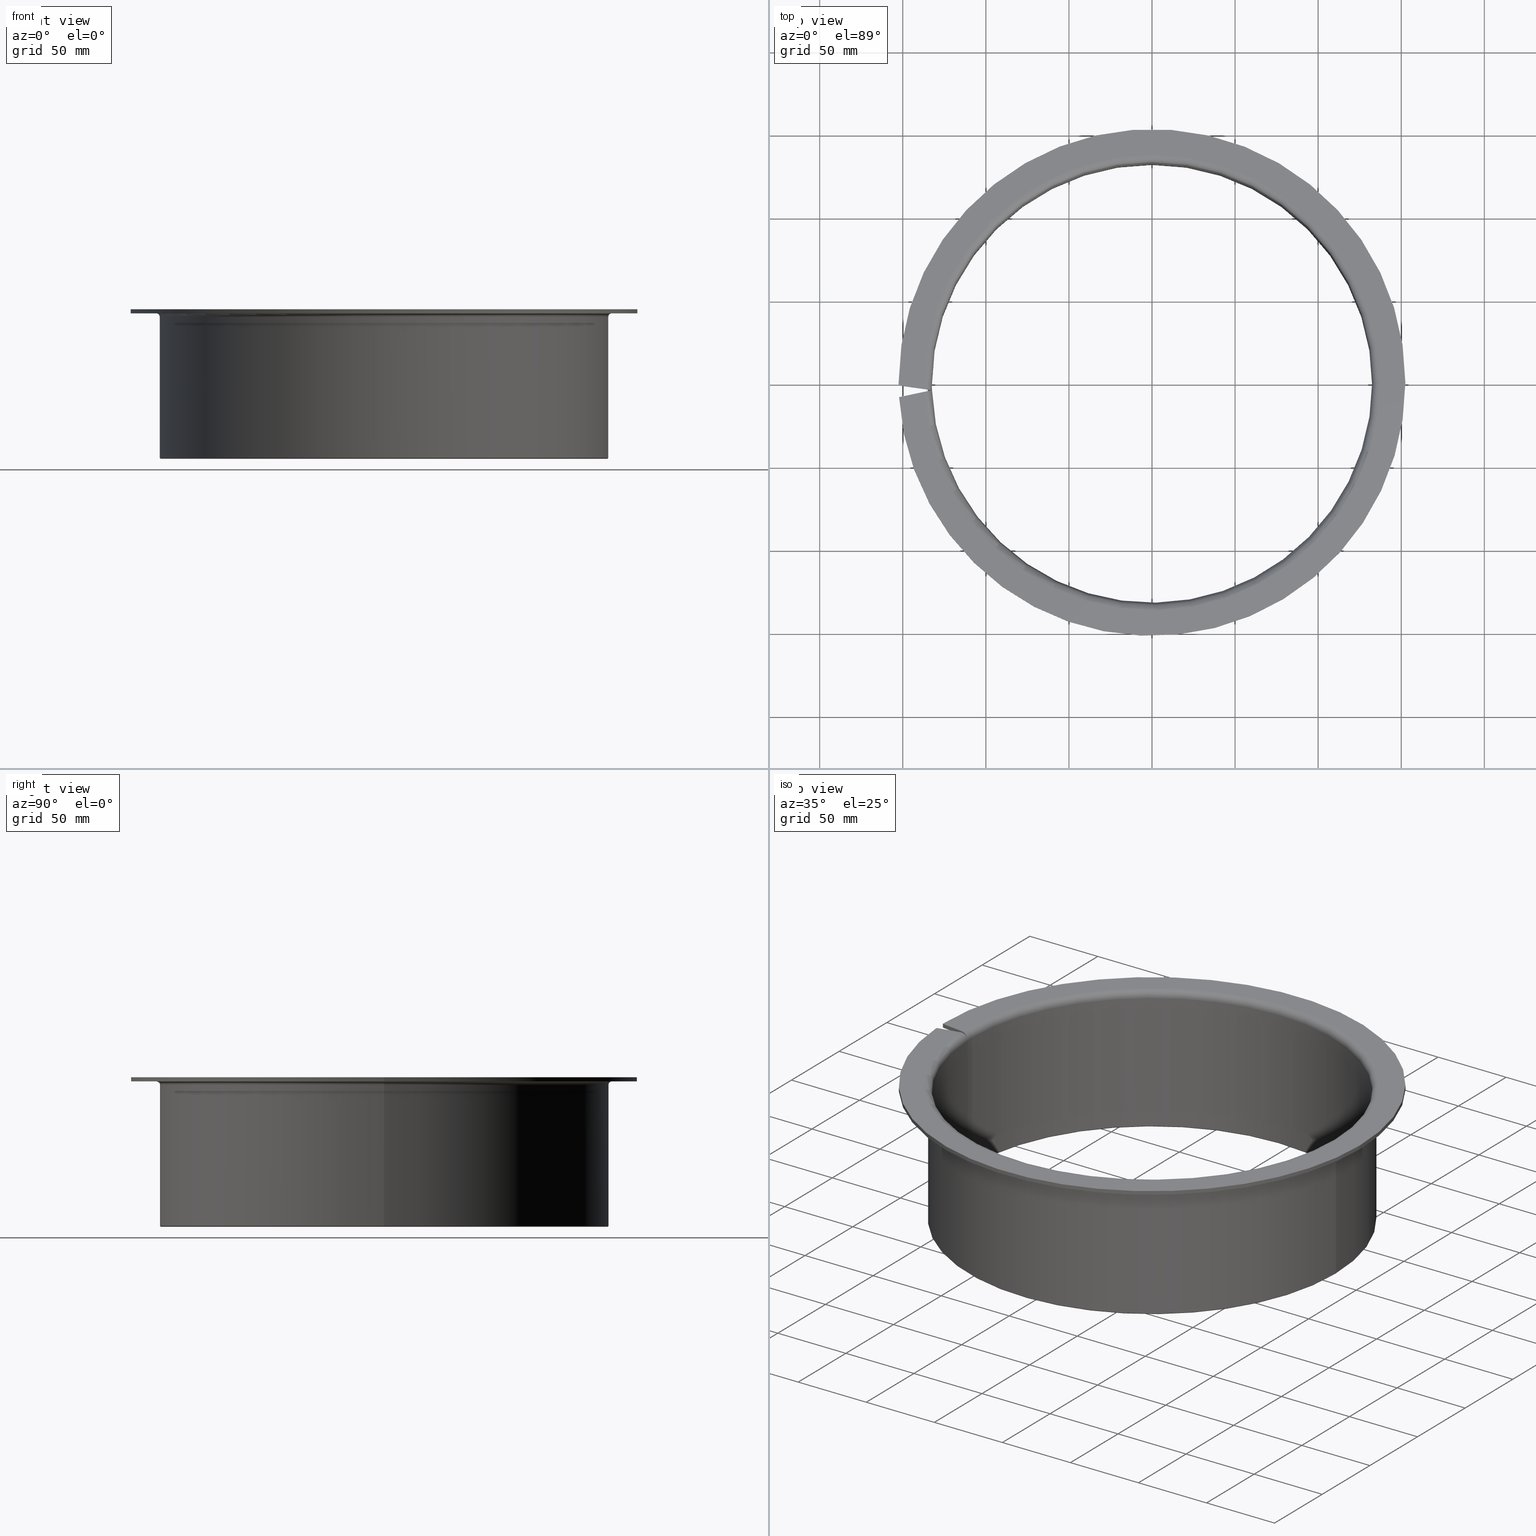
[diagram: canonical four-view strip — front | top / right | iso, engineering-drawing reading convention]
A machine part, canonical four-view strip (front | top / right | iso — engineering-drawing reading convention). The complete STEP part file that produces these views, byte-faithful:
ISO-10303-21;
HEADER;
FILE_DESCRIPTION(('STEP AP203'),'1');
FILE_NAME('490-ABB092-26590.stp','2016-09-23T15:52:54',(' '),(' '),'Spatial InterOp 3D',' ',' ');
FILE_SCHEMA(('CONFIG_CONTROL_DESIGN'));
ENDSEC;
DATA;
#1=DESIGN_CONTEXT('',#27,'design');
#2=APPLICATION_PROTOCOL_DEFINITION('INTERNATIONAL STANDARD','config_control_design',1994,#27);
#3=PRODUCT_CATEGORY_RELATIONSHIP('NONE','NONE',#28,#29);
#4=DATE_AND_TIME(#30,#31);
#5=DATE_TIME_ROLE('creation_date');
#6=DATE_TIME_ROLE('classification_date');
#7=PERSON_AND_ORGANIZATION_ROLE('creator');
#8=PERSON_AND_ORGANIZATION_ROLE('design_supplier');
#9=PERSON_AND_ORGANIZATION_ROLE('classification_officer');
#10=PERSON_AND_ORGANIZATION_ROLE('design_owner');
#11=APPROVAL_PERSON_ORGANIZATION(#32,#33,#34);
#12=APPROVAL_DATE_TIME(#4,#33);
#13=CC_DESIGN_APPROVAL(#33,(#35,#36,#37));
#14=CC_DESIGN_DATE_AND_TIME_ASSIGNMENT(#4,#5,(#37));
#15=CC_DESIGN_DATE_AND_TIME_ASSIGNMENT(#4,#6,(#35));
#16=CC_DESIGN_PERSON_AND_ORGANIZATION_ASSIGNMENT(#32,#10,(#38));
#17=CC_DESIGN_PERSON_AND_ORGANIZATION_ASSIGNMENT(#32,#7,(#37));
#18=CC_DESIGN_PERSON_AND_ORGANIZATION_ASSIGNMENT(#32,#7,(#36));
#19=CC_DESIGN_PERSON_AND_ORGANIZATION_ASSIGNMENT(#32,#8,(#36));
#20=CC_DESIGN_SECURITY_CLASSIFICATION(#35,(#36));
#21=CC_DESIGN_PERSON_AND_ORGANIZATION_ASSIGNMENT(#32,#9,(#35));
#22=SHAPE_DEFINITION_REPRESENTATION(#39,#40);
#23= (GEOMETRIC_REPRESENTATION_CONTEXT(3)GLOBAL_UNCERTAINTY_ASSIGNED_CONTEXT((#43))GLOBAL_UNIT_ASSIGNED_CONTEXT((#45,#46,#47))REPRESENTATION_CONTEXT('NONE','WORKSPACE'));
#27=APPLICATION_CONTEXT('CONFIGURATION CONTROLLED 3D DESIGNS OF MECHANICAL PARTS AND ASSEMBLIES');
#28=PRODUCT_CATEGORY('part','NONE');
#29=PRODUCT_RELATED_PRODUCT_CATEGORY('detail',' ',(#38));
#30=CALENDAR_DATE(2016,23,8);
#31=LOCAL_TIME(17,52,54.0,#49);
#32=PERSON_AND_ORGANIZATION(#50,#51);
#33=APPROVAL(#52,'SOLID MODEL');
#34=APPROVAL_ROLE('APPROVED');
#35=SECURITY_CLASSIFICATION('','',#53);
#36=PRODUCT_DEFINITION_FORMATION_WITH_SPECIFIED_SOURCE(' ','NONE',#38,.NOT_KNOWN.);
#37=PRODUCT_DEFINITION('NONE','NONE',#36,#1);
#38=PRODUCT('1','1','PART-1-DESC',(#54));
#39=PRODUCT_DEFINITION_SHAPE('NONE','NONE',#37);
#40=ADVANCED_BREP_SHAPE_REPRESENTATION('1',(#55,#56),#23);
#43=UNCERTAINTY_MEASURE_WITH_UNIT(LENGTH_MEASURE(1.0E-006),#45,'','');
#45= (CONVERSION_BASED_UNIT('MILLIMETRE',#59)LENGTH_UNIT()NAMED_UNIT(#62));
#46= (NAMED_UNIT(#64)PLANE_ANGLE_UNIT()SI_UNIT($,.RADIAN.));
#47= (NAMED_UNIT(#64)SOLID_ANGLE_UNIT()SI_UNIT($,.STERADIAN.));
#49=COORDINATED_UNIVERSAL_TIME_OFFSET(1,0,.AHEAD.);
#50=PERSON('','UNSPECIFIED',$,$,$,$);
#51=ORGANIZATION('UNSPECIFIED','UNSPECIFIED','UNSPECIFIED');
#52=APPROVAL_STATUS('approved');
#53=SECURITY_CLASSIFICATION_LEVEL('unclassified');
#54=MECHANICAL_CONTEXT('',#27,'mechanical');
#55=MANIFOLD_SOLID_BREP('1',#70);
#56=AXIS2_PLACEMENT_3D('',#71,#72,#73);
#59=LENGTH_MEASURE_WITH_UNIT(LENGTH_MEASURE(1.0),#74);
#62=DIMENSIONAL_EXPONENTS(1.0,0.0,0.0,0.0,0.0,0.0,0.0);
#64=DIMENSIONAL_EXPONENTS(0.0,0.0,0.0,0.0,0.0,0.0,0.0);
#70=CLOSED_SHELL('',(#75,#76,#77,#78,#79,#80,#81,#82,#83,#84,#85,#86,#87,#88,#89,#90,#91,#92,#93,#94,#95,#96,#97,#98,#99,#100));
#71=CARTESIAN_POINT('',(0.0,0.0,0.0));
#72=DIRECTION('',(0.0,0.0,1.0));
#73=DIRECTION('',(1.0,0.0,0.0));
#74= (NAMED_UNIT(#62)LENGTH_UNIT()SI_UNIT(.MILLI.,.METRE.));
#75=ADVANCED_FACE('',(#102),#103,.F.);
#76=ADVANCED_FACE('',(#104),#105,.F.);
#77=ADVANCED_FACE('',(#106),#107,.T.);
#78=ADVANCED_FACE('',(#108),#109,.T.);
#79=ADVANCED_FACE('',(#110),#111,.T.);
#80=ADVANCED_FACE('',(#112),#113,.T.);
#81=ADVANCED_FACE('',(#114),#115,.F.);
#82=ADVANCED_FACE('',(#116),#117,.F.);
#83=ADVANCED_FACE('',(#118),#119,.T.);
#84=ADVANCED_FACE('',(#120),#121,.T.);
#85=ADVANCED_FACE('',(#122),#123,.T.);
#86=ADVANCED_FACE('',(#124),#125,.T.);
#87=ADVANCED_FACE('',(#126),#127,.F.);
#88=ADVANCED_FACE('',(#128),#129,.F.);
#89=ADVANCED_FACE('',(#130),#131,.T.);
#90=ADVANCED_FACE('',(#132),#133,.F.);
#91=ADVANCED_FACE('',(#134),#135,.T.);
#92=ADVANCED_FACE('',(#136),#137,.T.);
#93=ADVANCED_FACE('',(#138),#139,.T.);
#94=ADVANCED_FACE('',(#140),#141,.T.);
#95=ADVANCED_FACE('',(#142),#143,.F.);
#96=ADVANCED_FACE('',(#144),#145,.T.);
#97=ADVANCED_FACE('',(#146),#147,.T.);
#98=ADVANCED_FACE('',(#148),#149,.T.);
#99=ADVANCED_FACE('',(#150),#151,.F.);
#100=ADVANCED_FACE('',(#152),#153,.F.);
#102=FACE_OUTER_BOUND('',#154,.T.);
#103=CONICAL_SURFACE('',#155,132.75,0.785398163397455);
#104=FACE_OUTER_BOUND('',#156,.T.);
#105=CONICAL_SURFACE('',#157,132.75,0.785398163397455);
#106=FACE_OUTER_BOUND('',#158,.T.);
#107=CONICAL_SURFACE('',#159,134.75,0.785398163397438);
#108=FACE_OUTER_BOUND('',#160,.T.);
#109=CONICAL_SURFACE('',#161,134.75,0.785398163397438);
#110=FACE_OUTER_BOUND('',#162,.T.);
#111=CYLINDRICAL_SURFACE('',#163,135.0);
#112=FACE_OUTER_BOUND('',#164,.T.);
#113=CYLINDRICAL_SURFACE('',#165,135.0);
#114=FACE_OUTER_BOUND('',#166,.T.);
#115=TOROIDAL_SURFACE('',#167,137.0,2.0);
#116=FACE_OUTER_BOUND('',#168,.T.);
#117=TOROIDAL_SURFACE('',#169,137.0,2.0);
#118=FACE_OUTER_BOUND('',#170,.T.);
#119=CYLINDRICAL_SURFACE('',#171,152.5);
#120=FACE_OUTER_BOUND('',#172,.T.);
#121=CYLINDRICAL_SURFACE('',#173,152.5);
#122=FACE_OUTER_BOUND('',#174,.T.);
#123=TOROIDAL_SURFACE('',#175,137.0,4.5);
#124=FACE_OUTER_BOUND('',#176,.T.);
#125=TOROIDAL_SURFACE('',#177,137.0,4.5);
#126=FACE_OUTER_BOUND('',#178,.T.);
#127=CYLINDRICAL_SURFACE('',#179,132.5);
#128=FACE_OUTER_BOUND('',#180,.T.);
#129=CYLINDRICAL_SURFACE('',#181,132.5);
#130=FACE_OUTER_BOUND('',#182,.T.);
#131=PLANE('',#183);
#132=FACE_OUTER_BOUND('',#184,.T.);
#133=CYLINDRICAL_SURFACE('',#185,132.5);
#134=FACE_OUTER_BOUND('',#186,.T.);
#135=TOROIDAL_SURFACE('',#187,137.0,4.5);
#136=FACE_OUTER_BOUND('',#188,.T.);
#137=PLANE('',#189);
#138=FACE_OUTER_BOUND('',#190,.T.);
#139=CYLINDRICAL_SURFACE('',#191,152.5);
#140=FACE_OUTER_BOUND('',#192,.T.);
#141=PLANE('',#193);
#142=FACE_OUTER_BOUND('',#194,.T.);
#143=TOROIDAL_SURFACE('',#195,137.0,2.0);
#144=FACE_OUTER_BOUND('',#196,.T.);
#145=CYLINDRICAL_SURFACE('',#197,135.0);
#146=FACE_OUTER_BOUND('',#198,.T.);
#147=CONICAL_SURFACE('',#199,134.75,0.785398163397438);
#148=FACE_OUTER_BOUND('',#200,.T.);
#149=PLANE('',#201);
#150=FACE_OUTER_BOUND('',#202,.T.);
#151=CONICAL_SURFACE('',#203,132.75,0.785398163397455);
#152=FACE_OUTER_BOUND('',#204,.T.);
#153=PLANE('',#205);
#154=EDGE_LOOP('',(#206,#207,#208,#209));
#155=AXIS2_PLACEMENT_3D('',#210,#211,#212);
#156=EDGE_LOOP('',(#213,#214,#215,#216));
#157=AXIS2_PLACEMENT_3D('',#217,#218,#219);
#158=EDGE_LOOP('',(#220,#221,#222,#223));
#159=AXIS2_PLACEMENT_3D('',#224,#225,#226);
#160=EDGE_LOOP('',(#227,#228,#229,#230));
#161=AXIS2_PLACEMENT_3D('',#231,#232,#233);
#162=EDGE_LOOP('',(#234,#235,#236,#237));
#163=AXIS2_PLACEMENT_3D('',#238,#239,#240);
#164=EDGE_LOOP('',(#241,#242,#243,#244));
#165=AXIS2_PLACEMENT_3D('',#245,#246,#247);
#166=EDGE_LOOP('',(#248,#249,#250,#251));
#167=AXIS2_PLACEMENT_3D('',#252,#253,#254);
#168=EDGE_LOOP('',(#255,#256,#257,#258));
#169=AXIS2_PLACEMENT_3D('',#259,#260,#261);
#170=EDGE_LOOP('',(#262,#263,#264,#265));
#171=AXIS2_PLACEMENT_3D('',#266,#267,#268);
#172=EDGE_LOOP('',(#269,#270,#271,#272));
#173=AXIS2_PLACEMENT_3D('',#273,#274,#275);
#174=EDGE_LOOP('',(#276,#277,#278,#279));
#175=AXIS2_PLACEMENT_3D('',#280,#281,#282);
#176=EDGE_LOOP('',(#283,#284,#285,#286));
#177=AXIS2_PLACEMENT_3D('',#287,#288,#289);
#178=EDGE_LOOP('',(#290,#291,#292,#293));
#179=AXIS2_PLACEMENT_3D('',#294,#295,#296);
#180=EDGE_LOOP('',(#297,#298,#299,#300));
#181=AXIS2_PLACEMENT_3D('',#301,#302,#303);
#182=EDGE_LOOP('',(#304,#305,#306,#307,#308,#309,#310,#311,#312,#313));
#183=AXIS2_PLACEMENT_3D('',#314,#315,#316);
#184=EDGE_LOOP('',(#317,#318,#319,#320));
#185=AXIS2_PLACEMENT_3D('',#321,#322,#323);
#186=EDGE_LOOP('',(#324,#325,#326,#327));
#187=AXIS2_PLACEMENT_3D('',#328,#329,#330);
#188=EDGE_LOOP('',(#331,#332,#333,#334,#335,#336,#337,#338));
#189=AXIS2_PLACEMENT_3D('',#339,#340,#341);
#190=EDGE_LOOP('',(#342,#343,#344,#345));
#191=AXIS2_PLACEMENT_3D('',#346,#347,#348);
#192=EDGE_LOOP('',(#349,#350,#351,#352,#353,#354,#355,#356));
#193=AXIS2_PLACEMENT_3D('',#357,#358,#359);
#194=EDGE_LOOP('',(#360,#361,#362,#363));
#195=AXIS2_PLACEMENT_3D('',#364,#365,#366);
#196=EDGE_LOOP('',(#367,#368,#369,#370));
#197=AXIS2_PLACEMENT_3D('',#371,#372,#373);
#198=EDGE_LOOP('',(#374,#375,#376,#377));
#199=AXIS2_PLACEMENT_3D('',#378,#379,#380);
#200=EDGE_LOOP('',(#381,#382,#383,#384,#385,#386,#387,#388));
#201=AXIS2_PLACEMENT_3D('',#389,#390,#391);
#202=EDGE_LOOP('',(#392,#393,#394,#395));
#203=AXIS2_PLACEMENT_3D('',#396,#397,#398);
#204=EDGE_LOOP('',(#399,#400,#401,#402,#403,#404,#405,#406,#407,#408));
#205=AXIS2_PLACEMENT_3D('',#409,#410,#411);
#206=ORIENTED_EDGE('',*,*,#412,.T.);
#207=ORIENTED_EDGE('',*,*,#413,.F.);
#208=ORIENTED_EDGE('',*,*,#414,.T.);
#209=ORIENTED_EDGE('',*,*,#415,.T.);
#210=CARTESIAN_POINT('',(1.38670259942823E-030,7.30296441936522E-016,0.250000000000002));
#211=DIRECTION('',(1.16269284789061E-031,6.12323399573677E-017,-1.0));
#212=DIRECTION('',(-1.0,1.88237377125682E-015,-1.00713410063058E-033));
#213=ORIENTED_EDGE('',*,*,#416,.F.);
#214=ORIENTED_EDGE('',*,*,#417,.F.);
#215=ORIENTED_EDGE('',*,*,#412,.F.);
#216=ORIENTED_EDGE('',*,*,#418,.T.);
#217=CARTESIAN_POINT('',(1.38670259942823E-030,7.30296441936522E-016,0.250000000000002));
#218=DIRECTION('',(1.16269284789061E-031,6.12323399573677E-017,-1.0));
#219=DIRECTION('',(-1.0,1.88237377125682E-015,-1.00713410063058E-033));
#220=ORIENTED_EDGE('',*,*,#419,.F.);
#221=ORIENTED_EDGE('',*,*,#420,.F.);
#222=ORIENTED_EDGE('',*,*,#421,.T.);
#223=ORIENTED_EDGE('',*,*,#422,.T.);
#224=CARTESIAN_POINT('',(1.38670259942823E-030,7.30296441936522E-016,0.250000000000002));
#225=DIRECTION('',(-1.16269284789061E-031,-6.12323399573677E-017,1.0));
#226=DIRECTION('',(-1.0,1.88237377125682E-015,-1.00713410063055E-033));
#227=ORIENTED_EDGE('',*,*,#423,.F.);
#228=ORIENTED_EDGE('',*,*,#424,.T.);
#229=ORIENTED_EDGE('',*,*,#425,.T.);
#230=ORIENTED_EDGE('',*,*,#426,.F.);
#231=CARTESIAN_POINT('',(1.38670259942823E-030,7.30296441936522E-016,0.250000000000002));
#232=DIRECTION('',(-1.16269284789061E-031,-6.12323399573677E-017,1.0));
#233=DIRECTION('',(-1.0,1.88237377125682E-015,-1.00713410063055E-033));
#234=ORIENTED_EDGE('',*,*,#427,.F.);
#235=ORIENTED_EDGE('',*,*,#428,.F.);
#236=ORIENTED_EDGE('',*,*,#429,.T.);
#237=ORIENTED_EDGE('',*,*,#420,.T.);
#238=CARTESIAN_POINT('',(-2.8295281413662E-030,-1.49014960731379E-015,43.0));
#239=DIRECTION('',(-1.16269284789061E-031,-6.12323399573677E-017,1.0));
#240=DIRECTION('',(-1.0,1.88237377125682E-015,-1.00713410063058E-033));
#241=ORIENTED_EDGE('',*,*,#430,.F.);
#242=ORIENTED_EDGE('',*,*,#426,.T.);
#243=ORIENTED_EDGE('',*,*,#431,.T.);
#244=ORIENTED_EDGE('',*,*,#432,.F.);
#245=CARTESIAN_POINT('',(-2.8295281413662E-030,-1.49014960731379E-015,43.0));
#246=DIRECTION('',(-1.16269284789061E-031,-6.12323399573677E-017,1.0));
#247=DIRECTION('',(-1.0,1.88237377125682E-015,-1.00713410063058E-033));
#248=ORIENTED_EDGE('',*,*,#433,.T.);
#249=ORIENTED_EDGE('',*,*,#432,.T.);
#250=ORIENTED_EDGE('',*,*,#434,.T.);
#251=ORIENTED_EDGE('',*,*,#435,.F.);
#252=CARTESIAN_POINT('',(2.22044604925031E-015,-3.71059565656411E-015,85.5));
#253=DIRECTION('',(-1.16269284789061E-031,-6.12323399573677E-017,1.0));
#254=DIRECTION('',(-1.0,1.89882151931499E-015,0.0));
#255=ORIENTED_EDGE('',*,*,#436,.F.);
#256=ORIENTED_EDGE('',*,*,#437,.T.);
#257=ORIENTED_EDGE('',*,*,#433,.F.);
#258=ORIENTED_EDGE('',*,*,#438,.F.);
#259=CARTESIAN_POINT('',(2.22044604925031E-015,-3.71059565656411E-015,85.5));
#260=DIRECTION('',(-1.16269284789061E-031,-6.12323399573677E-017,1.0));
#261=DIRECTION('',(-1.0,1.89882151931499E-015,0.0));
#262=ORIENTED_EDGE('',*,*,#439,.F.);
#263=ORIENTED_EDGE('',*,*,#440,.F.);
#264=ORIENTED_EDGE('',*,*,#441,.T.);
#265=ORIENTED_EDGE('',*,*,#442,.T.);
#266=CARTESIAN_POINT('',(-7.04575888216064E-030,-3.7105956565641E-015,88.75));
#267=DIRECTION('',(-1.16269284789061E-031,-6.12323399573676E-017,1.0));
#268=DIRECTION('',(-1.0,1.88237377125682E-015,-1.00713410063058E-033));
#269=ORIENTED_EDGE('',*,*,#443,.F.);
#270=ORIENTED_EDGE('',*,*,#444,.T.);
#271=ORIENTED_EDGE('',*,*,#445,.T.);
#272=ORIENTED_EDGE('',*,*,#446,.F.);
#273=CARTESIAN_POINT('',(-7.04575888216064E-030,-3.7105956565641E-015,88.75));
#274=DIRECTION('',(-1.16269284789061E-031,-6.12323399573676E-017,1.0));
#275=DIRECTION('',(-1.0,1.88237377125682E-015,-1.00713410063058E-033));
#276=ORIENTED_EDGE('',*,*,#447,.F.);
#277=ORIENTED_EDGE('',*,*,#448,.F.);
#278=ORIENTED_EDGE('',*,*,#449,.T.);
#279=ORIENTED_EDGE('',*,*,#450,.T.);
#280=CARTESIAN_POINT('',(2.22044604925031E-015,-3.71059565656411E-015,85.5));
#281=DIRECTION('',(-1.16269284789061E-031,-6.12323399573677E-017,1.0));
#282=DIRECTION('',(-1.0,1.89882151931499E-015,0.0));
#283=ORIENTED_EDGE('',*,*,#451,.F.);
#284=ORIENTED_EDGE('',*,*,#452,.T.);
#285=ORIENTED_EDGE('',*,*,#453,.T.);
#286=ORIENTED_EDGE('',*,*,#454,.F.);
#287=CARTESIAN_POINT('',(2.22044604925031E-015,-3.71059565656411E-015,85.5));
#288=DIRECTION('',(-1.16269284789061E-031,-6.12323399573677E-017,1.0));
#289=DIRECTION('',(-1.0,1.89882151931499E-015,0.0));
#290=ORIENTED_EDGE('',*,*,#455,.T.);
#291=ORIENTED_EDGE('',*,*,#415,.F.);
#292=ORIENTED_EDGE('',*,*,#456,.T.);
#293=ORIENTED_EDGE('',*,*,#448,.T.);
#294=CARTESIAN_POINT('',(-2.8295281413662E-030,-1.49014960731379E-015,43.0));
#295=DIRECTION('',(-1.16269284789061E-031,-6.12323399573677E-017,1.0));
#296=DIRECTION('',(-1.0,1.88237377125682E-015,-1.00713410063059E-033));
#297=ORIENTED_EDGE('',*,*,#457,.F.);
#298=ORIENTED_EDGE('',*,*,#418,.F.);
#299=ORIENTED_EDGE('',*,*,#455,.F.);
#300=ORIENTED_EDGE('',*,*,#458,.T.);
#301=CARTESIAN_POINT('',(-2.8295281413662E-030,-1.49014960731379E-015,43.0));
#302=DIRECTION('',(-1.16269284789061E-031,-6.12323399573677E-017,1.0));
#303=DIRECTION('',(-1.0,1.88237377125682E-015,-1.00713410063059E-033));
#304=ORIENTED_EDGE('',*,*,#459,.F.);
#305=ORIENTED_EDGE('',*,*,#460,.T.);
#306=ORIENTED_EDGE('',*,*,#453,.F.);
#307=ORIENTED_EDGE('',*,*,#461,.F.);
#308=ORIENTED_EDGE('',*,*,#445,.F.);
#309=ORIENTED_EDGE('',*,*,#462,.F.);
#310=ORIENTED_EDGE('',*,*,#434,.F.);
#311=ORIENTED_EDGE('',*,*,#431,.F.);
#312=ORIENTED_EDGE('',*,*,#425,.F.);
#313=ORIENTED_EDGE('',*,*,#463,.F.);
#314=CARTESIAN_POINT('',(-152.224645954861,-1.84072129387614,45.0));
#315=DIRECTION('',(-0.13917310096023,-0.990268068741547,3.4862242830457E-016));
#316=DIRECTION('',(7.52384945084923E-018,3.5099113241836E-016,1.0));
#317=ORIENTED_EDGE('',*,*,#457,.T.);
#318=ORIENTED_EDGE('',*,*,#454,.T.);
#319=ORIENTED_EDGE('',*,*,#460,.F.);
#320=ORIENTED_EDGE('',*,*,#464,.F.);
#321=CARTESIAN_POINT('',(-2.8295281413662E-030,-1.49014960731379E-015,43.0));
#322=DIRECTION('',(-1.16269284789061E-031,-6.12323399573677E-017,1.0));
#323=DIRECTION('',(-1.0,1.88237377125682E-015,-1.00713410063059E-033));
#324=ORIENTED_EDGE('',*,*,#451,.T.);
#325=ORIENTED_EDGE('',*,*,#458,.F.);
#326=ORIENTED_EDGE('',*,*,#447,.T.);
#327=ORIENTED_EDGE('',*,*,#465,.T.);
#328=CARTESIAN_POINT('',(2.22044604925031E-015,-3.71059565656411E-015,85.5));
#329=DIRECTION('',(-1.16269284789061E-031,-6.12323399573677E-017,1.0));
#330=DIRECTION('',(-1.0,1.89882151931499E-015,0.0));
#331=ORIENTED_EDGE('',*,*,#466,.T.);
#332=ORIENTED_EDGE('',*,*,#440,.T.);
#333=ORIENTED_EDGE('',*,*,#467,.T.);
#334=ORIENTED_EDGE('',*,*,#446,.T.);
#335=ORIENTED_EDGE('',*,*,#461,.T.);
#336=ORIENTED_EDGE('',*,*,#452,.F.);
#337=ORIENTED_EDGE('',*,*,#465,.F.);
#338=ORIENTED_EDGE('',*,*,#450,.F.);
#339=CARTESIAN_POINT('',(-144.75,2.6892337321503E-013,90.0));
#340=DIRECTION('',(-1.16269284789061E-031,-6.12323399573677E-017,1.0));
#341=DIRECTION('',(-1.0,1.89882151931499E-015,0.0));
#342=ORIENTED_EDGE('',*,*,#443,.T.);
#343=ORIENTED_EDGE('',*,*,#467,.F.);
#344=ORIENTED_EDGE('',*,*,#439,.T.);
#345=ORIENTED_EDGE('',*,*,#468,.T.);
#346=CARTESIAN_POINT('',(-7.04575888216064E-030,-3.7105956565641E-015,88.75));
#347=DIRECTION('',(-1.16269284789061E-031,-6.12323399573676E-017,1.0));
#348=DIRECTION('',(-1.0,1.88237377125682E-015,-1.00713410063058E-033));
#349=ORIENTED_EDGE('',*,*,#469,.T.);
#350=ORIENTED_EDGE('',*,*,#470,.T.);
#351=ORIENTED_EDGE('',*,*,#438,.T.);
#352=ORIENTED_EDGE('',*,*,#435,.T.);
#353=ORIENTED_EDGE('',*,*,#462,.T.);
#354=ORIENTED_EDGE('',*,*,#444,.F.);
#355=ORIENTED_EDGE('',*,*,#468,.F.);
#356=ORIENTED_EDGE('',*,*,#442,.F.);
#357=CARTESIAN_POINT('',(-144.75,2.6892337321503E-013,87.5));
#358=DIRECTION('',(-1.1460366705808E-015,6.12323399573698E-017,-1.0));
#359=DIRECTION('',(1.0,-1.89882151931499E-015,-1.1460366705808E-015));
#360=ORIENTED_EDGE('',*,*,#436,.T.);
#361=ORIENTED_EDGE('',*,*,#470,.F.);
#362=ORIENTED_EDGE('',*,*,#471,.T.);
#363=ORIENTED_EDGE('',*,*,#428,.T.);
#364=CARTESIAN_POINT('',(2.22044604925031E-015,-3.71059565656411E-015,85.5));
#365=DIRECTION('',(-1.16269284789061E-031,-6.12323399573677E-017,1.0));
#366=DIRECTION('',(-1.0,1.89882151931499E-015,0.0));
#367=ORIENTED_EDGE('',*,*,#430,.T.);
#368=ORIENTED_EDGE('',*,*,#437,.F.);
#369=ORIENTED_EDGE('',*,*,#427,.T.);
#370=ORIENTED_EDGE('',*,*,#472,.T.);
#371=CARTESIAN_POINT('',(-2.8295281413662E-030,-1.49014960731379E-015,43.0));
#372=DIRECTION('',(-1.16269284789061E-031,-6.12323399573677E-017,1.0));
#373=DIRECTION('',(-1.0,1.88237377125682E-015,-1.00713410063058E-033));
#374=ORIENTED_EDGE('',*,*,#423,.T.);
#375=ORIENTED_EDGE('',*,*,#472,.F.);
#376=ORIENTED_EDGE('',*,*,#419,.T.);
#377=ORIENTED_EDGE('',*,*,#473,.T.);
#378=CARTESIAN_POINT('',(1.38670259942823E-030,7.30296441936522E-016,0.250000000000002));
#379=DIRECTION('',(-1.16269284789061E-031,-6.12323399573677E-017,1.0));
#380=DIRECTION('',(-1.0,1.88237377125682E-015,-1.00713410063055E-033));
#381=ORIENTED_EDGE('',*,*,#474,.T.);
#382=ORIENTED_EDGE('',*,*,#413,.T.);
#383=ORIENTED_EDGE('',*,*,#417,.T.);
#384=ORIENTED_EDGE('',*,*,#475,.T.);
#385=ORIENTED_EDGE('',*,*,#463,.T.);
#386=ORIENTED_EDGE('',*,*,#424,.F.);
#387=ORIENTED_EDGE('',*,*,#473,.F.);
#388=ORIENTED_EDGE('',*,*,#422,.F.);
#389=CARTESIAN_POINT('',(-133.75,2.54697674650316E-013,-1.41435210304722E-015));
#390=DIRECTION('',(1.16269284789061E-031,6.12323399573677E-017,-1.0));
#391=DIRECTION('',(1.0,-1.89882151931499E-015,0.0));
#392=ORIENTED_EDGE('',*,*,#416,.T.);
#393=ORIENTED_EDGE('',*,*,#464,.T.);
#394=ORIENTED_EDGE('',*,*,#459,.T.);
#395=ORIENTED_EDGE('',*,*,#475,.F.);
#396=CARTESIAN_POINT('',(1.38670259942823E-030,7.30296441936522E-016,0.250000000000002));
#397=DIRECTION('',(1.16269284789061E-031,6.12323399573677E-017,-1.0));
#398=DIRECTION('',(-1.0,1.88237377125682E-015,-1.00713410063058E-033));
#399=ORIENTED_EDGE('',*,*,#414,.F.);
#400=ORIENTED_EDGE('',*,*,#474,.F.);
#401=ORIENTED_EDGE('',*,*,#421,.F.);
#402=ORIENTED_EDGE('',*,*,#429,.F.);
#403=ORIENTED_EDGE('',*,*,#471,.F.);
#404=ORIENTED_EDGE('',*,*,#469,.F.);
#405=ORIENTED_EDGE('',*,*,#441,.F.);
#406=ORIENTED_EDGE('',*,*,#466,.F.);
#407=ORIENTED_EDGE('',*,*,#449,.F.);
#408=ORIENTED_EDGE('',*,*,#456,.F.);
#409=CARTESIAN_POINT('',(-151.982236594707,-8.78241712943267,45.0));
#410=DIRECTION('',(0.207911690817597,-0.97814760073384,3.40985957008512E-016));
#411=DIRECTION('',(1.1960470641942E-017,3.51146062644295E-016,1.0));
#412=EDGE_CURVE('',#476,#477,#478,.T.);
#413=EDGE_CURVE('',#479,#477,#480,.T.);
#414=EDGE_CURVE('',#479,#481,#482,.T.);
#415=EDGE_CURVE('',#481,#476,#483,.T.);
#416=EDGE_CURVE('',#484,#485,#486,.T.);
#417=EDGE_CURVE('',#477,#484,#487,.T.);
#418=EDGE_CURVE('',#476,#485,#488,.T.);
#419=EDGE_CURVE('',#489,#490,#491,.T.);
#420=EDGE_CURVE('',#492,#489,#493,.T.);
#421=EDGE_CURVE('',#492,#494,#495,.T.);
#422=EDGE_CURVE('',#494,#490,#496,.T.);
#423=EDGE_CURVE('',#497,#498,#499,.T.);
#424=EDGE_CURVE('',#497,#500,#501,.T.);
#425=EDGE_CURVE('',#500,#502,#503,.T.);
#426=EDGE_CURVE('',#498,#502,#504,.T.);
#427=EDGE_CURVE('',#505,#489,#506,.T.);
#428=EDGE_CURVE('',#507,#505,#508,.T.);
#429=EDGE_CURVE('',#507,#492,#509,.T.);
#430=EDGE_CURVE('',#498,#510,#511,.T.);
#431=EDGE_CURVE('',#502,#512,#513,.T.);
#432=EDGE_CURVE('',#510,#512,#514,.T.);
#433=EDGE_CURVE('',#515,#510,#516,.T.);
#434=EDGE_CURVE('',#512,#517,#518,.T.);
#435=EDGE_CURVE('',#515,#517,#519,.T.);
#436=EDGE_CURVE('',#505,#520,#521,.T.);
#437=EDGE_CURVE('',#505,#510,#522,.T.);
#438=EDGE_CURVE('',#520,#515,#523,.T.);
#439=EDGE_CURVE('',#524,#525,#526,.T.);
#440=EDGE_CURVE('',#527,#524,#528,.T.);
#441=EDGE_CURVE('',#527,#529,#530,.T.);
#442=EDGE_CURVE('',#529,#525,#531,.T.);
#443=EDGE_CURVE('',#532,#533,#534,.T.);
#444=EDGE_CURVE('',#532,#535,#536,.T.);
#445=EDGE_CURVE('',#535,#537,#538,.T.);
#446=EDGE_CURVE('',#533,#537,#539,.T.);
#447=EDGE_CURVE('',#540,#541,#542,.T.);
#448=EDGE_CURVE('',#543,#540,#544,.T.);
#449=EDGE_CURVE('',#543,#545,#546,.T.);
#450=EDGE_CURVE('',#545,#541,#547,.T.);
#451=EDGE_CURVE('',#548,#549,#550,.T.);
#452=EDGE_CURVE('',#548,#551,#552,.T.);
#453=EDGE_CURVE('',#551,#543,#553,.T.);
#454=EDGE_CURVE('',#549,#543,#554,.T.);
#455=EDGE_CURVE('',#540,#476,#555,.T.);
#456=EDGE_CURVE('',#481,#543,#556,.T.);
#457=EDGE_CURVE('',#485,#549,#557,.T.);
#458=EDGE_CURVE('',#540,#549,#558,.T.);
#459=EDGE_CURVE('',#481,#559,#560,.T.);
#460=EDGE_CURVE('',#481,#543,#561,.T.);
#461=EDGE_CURVE('',#537,#551,#562,.T.);
#462=EDGE_CURVE('',#517,#535,#563,.T.);
#463=EDGE_CURVE('',#559,#500,#564,.T.);
#464=EDGE_CURVE('',#485,#481,#565,.T.);
#465=EDGE_CURVE('',#541,#548,#566,.T.);
#466=EDGE_CURVE('',#545,#527,#567,.T.);
#467=EDGE_CURVE('',#524,#533,#568,.T.);
#468=EDGE_CURVE('',#525,#532,#569,.T.);
#469=EDGE_CURVE('',#529,#570,#571,.T.);
#470=EDGE_CURVE('',#570,#520,#572,.T.);
#471=EDGE_CURVE('',#570,#507,#573,.T.);
#472=EDGE_CURVE('',#489,#498,#574,.T.);
#473=EDGE_CURVE('',#490,#497,#575,.T.);
#474=EDGE_CURVE('',#494,#479,#576,.T.);
#475=EDGE_CURVE('',#484,#559,#577,.T.);
#476=VERTEX_POINT('',#578);
#477=VERTEX_POINT('',#579);
#478=LINE('',#580,#581);
#479=VERTEX_POINT('',#582);
#480=CIRCLE('',#583,133.0);
#481=VERTEX_POINT('',#584);
#482=B_SPLINE_CURVE_WITH_KNOTS('',2,(#585,#586,#587),.UNSPECIFIED.,.F.,.F.,(3,3),(0.0,0.071256064721751),.UNSPECIFIED.);
#483=CIRCLE('',#588,132.5);
#484=VERTEX_POINT('',#589);
#485=VERTEX_POINT('',#590);
#486=LINE('',#591,#592);
#487=CIRCLE('',#593,133.0);
#488=CIRCLE('',#594,132.5);
#489=VERTEX_POINT('',#595);
#490=VERTEX_POINT('',#596);
#491=LINE('',#597,#598);
#492=VERTEX_POINT('',#599);
#493=CIRCLE('',#600,135.0);
#494=VERTEX_POINT('',#601);
#495=LINE('',#602,#603);
#496=CIRCLE('',#604,134.5);
#497=VERTEX_POINT('',#605);
#498=VERTEX_POINT('',#606);
#499=LINE('',#607,#608);
#500=VERTEX_POINT('',#609);
#501=CIRCLE('',#610,134.5);
#502=VERTEX_POINT('',#611);
#503=LINE('',#612,#613);
#504=CIRCLE('',#614,135.0);
#505=VERTEX_POINT('',#615);
#506=LINE('',#616,#617);
#507=VERTEX_POINT('',#618);
#508=CIRCLE('',#619,135.0);
#509=LINE('',#620,#621);
#510=VERTEX_POINT('',#622);
#511=LINE('',#623,#624);
#512=VERTEX_POINT('',#625);
#513=LINE('',#626,#627);
#514=CIRCLE('',#628,135.0);
#515=VERTEX_POINT('',#629);
#516=CIRCLE('',#630,2.0);
#517=VERTEX_POINT('',#631);
#518=B_SPLINE_CURVE_WITH_KNOTS('',3,(#632,#633,#634,#635,#636,#637,#638,#639,#640,#641,#642,#643,#644,#645),.UNSPECIFIED.,.F.,.F.,(4,2,2,2,2,2,4),(0.522957948909959,0.59666084276221,0.670363736614459,0.744624266516654,0.819552383588384,0.895018445272793,0.970469212553352),.UNSPECIFIED.);
#519=CIRCLE('',#646,137.0);
#520=VERTEX_POINT('',#647);
#521=CIRCLE('',#648,2.0);
#522=CIRCLE('',#649,135.0);
#523=CIRCLE('',#650,137.0);
#524=VERTEX_POINT('',#651);
#525=VERTEX_POINT('',#652);
#526=LINE('',#653,#654);
#527=VERTEX_POINT('',#655);
#528=CIRCLE('',#656,152.5);
#529=VERTEX_POINT('',#657);
#530=LINE('',#658,#659);
#531=CIRCLE('',#660,152.5);
#532=VERTEX_POINT('',#661);
#533=VERTEX_POINT('',#662);
#534=LINE('',#663,#664);
#535=VERTEX_POINT('',#665);
#536=CIRCLE('',#666,152.5);
#537=VERTEX_POINT('',#667);
#538=LINE('',#668,#669);
#539=CIRCLE('',#670,152.5);
#540=VERTEX_POINT('',#671);
#541=VERTEX_POINT('',#672);
#542=CIRCLE('',#673,4.5);
#543=VERTEX_POINT('',#674);
#544=CIRCLE('',#675,132.5);
#545=VERTEX_POINT('',#676);
#546=B_SPLINE_CURVE_WITH_KNOTS('',3,(#677,#678,#679,#680,#681,#682,#683,#684,#685,#686,#687,#688,#689,#690,#691,#692,#693,#694,#695,#696,#697,#698),.UNSPECIFIED.,.F.,.F.,(4,2,2,2,2,2,2,2,2,2,4),(1.25958821930172,1.34249353694459,1.42539885458747,1.50830417223035,1.59186068827153,1.67541720431271,1.75973737954261,1.84405755477251,1.92896778391976,2.01387801306702,2.09874952689838),.UNSPECIFIED.);
#547=CIRCLE('',#699,137.0);
#548=VERTEX_POINT('',#700);
#549=VERTEX_POINT('',#701);
#550=CIRCLE('',#702,4.5);
#551=VERTEX_POINT('',#703);
#552=CIRCLE('',#704,137.0);
#553=B_SPLINE_CURVE_WITH_KNOTS('',3,(#705,#706,#707,#708,#709,#710,#711,#712,#713,#714,#715,#716,#717,#718,#719,#720,#721,#722,#723,#724,#725,#726),.UNSPECIFIED.,.F.,.F.,(4,2,2,2,2,2,2,2,2,2,4),(0.586237546990823,0.67110906082219,0.756019289969452,0.840929519116714,0.925249694346615,1.00956986957652,1.0931263856177,1.17668290165888,1.25958821930176,1.34249353694463,1.42539885458751),.UNSPECIFIED.);
#554=CIRCLE('',#727,132.5);
#555=LINE('',#728,#729);
#556=LINE('',#730,#731);
#557=LINE('',#732,#733);
#558=CIRCLE('',#734,132.5);
#559=VERTEX_POINT('',#735);
#560=B_SPLINE_CURVE_WITH_KNOTS('',2,(#736,#737,#738),.UNSPECIFIED.,.F.,.F.,(3,3),(0.0,0.071256064721754),.UNSPECIFIED.);
#561=LINE('',#739,#740);
#562=LINE('',#741,#742);
#563=LINE('',#743,#744);
#564=LINE('',#745,#746);
#565=CIRCLE('',#747,132.5);
#566=CIRCLE('',#748,137.0);
#567=LINE('',#749,#750);
#568=CIRCLE('',#751,152.5);
#569=CIRCLE('',#752,152.5);
#570=VERTEX_POINT('',#753);
#571=LINE('',#754,#755);
#572=CIRCLE('',#756,137.0);
#573=B_SPLINE_CURVE_WITH_KNOTS('',3,(#757,#758,#759,#760,#761,#762,#763,#764,#765,#766,#767,#768,#769,#770),.UNSPECIFIED.,.F.,.F.,(4,2,2,2,2,2,4),(0.222852472971065,0.298303240251619,0.373769301936021,0.44869741900775,0.522957948909941,0.596660842762193,0.670363736614446),.UNSPECIFIED.);
#574=CIRCLE('',#771,135.0);
#575=CIRCLE('',#772,134.5);
#576=LINE('',#773,#774);
#577=CIRCLE('',#775,133.0);
#578=CARTESIAN_POINT('',(132.5,-2.64528869939357E-013,0.500000000000007));
#579=CARTESIAN_POINT('',(133.0,-2.65897909478891E-013,-1.38777878078145E-015));
#580=CARTESIAN_POINT('',(132.75,-2.65412007951088E-013,0.250000000000002));
#581=VECTOR('',#776,1.0);
#582=CARTESIAN_POINT('',(-132.91587411205,-4.72973667656811,4.1051678588865E-014));
#583=AXIS2_PLACEMENT_3D('',#777,#778,#779);
#584=CARTESIAN_POINT('',(-132.41928458003,-4.62418331308074,0.500000000000006));
#585=CARTESIAN_POINT('',(-132.91587411205,-4.72973667656811,3.28637837822545E-014));
#586=CARTESIAN_POINT('',(-132.667111751647,-4.67686060456803,0.250485387039037));
#587=CARTESIAN_POINT('',(-132.41928458003,-4.62418331308074,0.500000000000014));
#588=AXIS2_PLACEMENT_3D('',#780,#781,#782);
#589=CARTESIAN_POINT('',(-133.0,2.67389118532743E-013,-1.38777878078144E-015));
#590=CARTESIAN_POINT('',(-132.5,2.66753319621106E-013,0.500000000000007));
#591=CARTESIAN_POINT('',(-132.75,2.66872600834961E-013,0.250000000000002));
#592=VECTOR('',#783,1.0);
#593=AXIS2_PLACEMENT_3D('',#784,#785,#786);
#594=AXIS2_PLACEMENT_3D('',#787,#788,#789);
#595=CARTESIAN_POINT('',(135.0,-2.69540966067286E-013,0.500000000000007));
#596=CARTESIAN_POINT('',(134.5,-2.68905167155649E-013,-1.38777878078145E-015));
#597=CARTESIAN_POINT('',(134.75,-2.69421684853431E-013,0.250000000000002));
#598=VECTOR('',#790,1.0);
#599=CARTESIAN_POINT('',(-134.901662913234,-5.15182911635036,0.500000000000006));
#600=AXIS2_PLACEMENT_3D('',#791,#792,#793);
#601=CARTESIAN_POINT('',(-134.405299803594,-5.04632388042534,4.11904564669432E-014));
#602=CARTESIAN_POINT('',(-134.653481358414,-5.09907649838785,0.250000000000024));
#603=VECTOR('',#794,10.0);
#604=AXIS2_PLACEMENT_3D('',#795,#796,#797);
#605=CARTESIAN_POINT('',(-134.5,2.703963762095E-013,-1.38777878078144E-015));
#606=CARTESIAN_POINT('',(-135.0,2.71765415749035E-013,0.500000000000007));
#607=CARTESIAN_POINT('',(-134.75,2.70882277737304E-013,0.250000000000002));
#608=VECTOR('',#798,1.0);
#609=CARTESIAN_POINT('',(-134.429909007728,-4.34160847773873,4.08782062412673E-014));
#610=AXIS2_PLACEMENT_3D('',#799,#800,#801);
#611=CARTESIAN_POINT('',(-134.932422675001,-4.27098478749079,0.500000000000005));
#612=CARTESIAN_POINT('',(-134.681165841364,-4.30629663261477,0.250000000000027));
#613=VECTOR('',#802,9.99999999999999);
#614=AXIS2_PLACEMENT_3D('',#803,#804,#805);
#615=CARTESIAN_POINT('',(135.0,-2.76584232552576E-013,85.5));
#616=CARTESIAN_POINT('',(135.0,-2.72143340515474E-013,43.0));
#617=VECTOR('',#806,1.0);
#618=CARTESIAN_POINT('',(-134.901662913234,-5.15182911635032,85.5));
#619=AXIS2_PLACEMENT_3D('',#807,#808,#809);
#620=CARTESIAN_POINT('',(-134.901662913234,-5.15182911635033,43.0));
#621=VECTOR('',#810,10.0);
#622=CARTESIAN_POINT('',(-135.0,2.69163041239448E-013,85.5));
#623=CARTESIAN_POINT('',(-135.0,2.69163041300847E-013,43.0));
#624=VECTOR('',#811,1.0);
#625=CARTESIAN_POINT('',(-134.932422675001,-4.27098478749077,85.5));
#626=CARTESIAN_POINT('',(-134.932422675001,-4.27098478749078,43.0));
#627=VECTOR('',#812,10.0);
#628=AXIS2_PLACEMENT_3D('',#813,#814,#815);
#629=CARTESIAN_POINT('',(-137.0,2.73083148957993E-013,87.5));
#630=AXIS2_PLACEMENT_3D('',#816,#817,#818);
#631=CARTESIAN_POINT('',(-136.941926852777,-3.98856739300774,87.5));
#632=CARTESIAN_POINT('',(-135.083767037973,-4.24971472439114,84.7386111618466));
#633=CARTESIAN_POINT('',(-134.989980231427,-4.26289560046712,84.9652985018437));
#634=CARTESIAN_POINT('',(-134.932422675001,-4.27098478749077,85.2543236871591));
#635=CARTESIAN_POINT('',(-134.932422675001,-4.27098478749077,85.7456763128408));
#636=CARTESIAN_POINT('',(-134.989980231427,-4.26289560046712,86.0347014981562));
#637=CARTESIAN_POINT('',(-135.178263435439,-4.23643412181482,86.4897912944266));
#638=CARTESIAN_POINT('',(-135.342936909622,-4.21329077429974,86.7359234808386));
#639=CARTESIAN_POINT('',(-135.692703361102,-4.16413430525789,87.0859947239575));
#640=CARTESIAN_POINT('',(-135.940309508925,-4.12933553056535,87.2512454561397));
#641=CARTESIAN_POINT('',(-136.399522337982,-4.06479737626354,87.4417029576083));
#642=CARTESIAN_POINT('',(-136.692821415578,-4.02357687908065,87.5));
#643=CARTESIAN_POINT('',(-137.190981804777,-3.95356500216686,87.5));
#644=CARTESIAN_POINT('',(-137.484222727287,-3.91235267814841,87.4417213740183));
#645=CARTESIAN_POINT('',(-137.714594814315,-3.87997599274535,87.3461494731215));
#646=AXIS2_PLACEMENT_3D('',#819,#820,#821);
#647=CARTESIAN_POINT('',(137.0,-2.80749269630951E-013,87.5));
#648=AXIS2_PLACEMENT_3D('',#822,#823,#824);
#649=AXIS2_PLACEMENT_3D('',#825,#826,#827);
#650=AXIS2_PLACEMENT_3D('',#828,#829,#830);
#651=CARTESIAN_POINT('',(152.5,-3.09524999885173E-013,90.0));
#652=CARTESIAN_POINT('',(152.5,-3.0937191903528E-013,87.5));
#653=CARTESIAN_POINT('',(152.5,-3.09448459460227E-013,88.75));
#654=VECTOR('',#831,1.0);
#655=CARTESIAN_POINT('',(-152.243686023932,-8.8379899211592,90.0));
#656=AXIS2_PLACEMENT_3D('',#832,#833,#834);
#657=CARTESIAN_POINT('',(-152.243686023932,-8.83798992115919,87.5));
#658=CARTESIAN_POINT('',(-152.243686023932,-8.83798992115919,88.75));
#659=VECTOR('',#835,10.0);
#660=AXIS2_PLACEMENT_3D('',#836,#837,#838);
#661=CARTESIAN_POINT('',(-152.5,3.02103808572045E-013,87.5));
#662=CARTESIAN_POINT('',(-152.5,3.01950727722152E-013,90.0));
#663=CARTESIAN_POINT('',(-152.5,3.02027268147098E-013,88.75));
#664=VECTOR('',#839,1.0);
#665=CARTESIAN_POINT('',(-152.489335068405,-1.80352166492205,87.5));
#666=AXIS2_PLACEMENT_3D('',#840,#841,#842);
#667=CARTESIAN_POINT('',(-152.489335068405,-1.80352166492205,90.0));
#668=CARTESIAN_POINT('',(-152.489335068405,-1.80352166492205,88.75));
#669=VECTOR('',#843,10.0);
#670=AXIS2_PLACEMENT_3D('',#844,#845,#846);
#671=CARTESIAN_POINT('',(132.5,-2.69733618835733E-013,85.5));
#672=CARTESIAN_POINT('',(137.0,-2.80902350480844E-013,90.0));
#673=AXIS2_PLACEMENT_3D('',#847,#848,#849);
#674=CARTESIAN_POINT('',(-132.41928458003,-4.62418331308071,85.5));
#675=AXIS2_PLACEMENT_3D('',#850,#851,#852);
#676=CARTESIAN_POINT('',(-136.886571598268,-5.57373448166978,90.0));
#677=CARTESIAN_POINT('',(-132.5042965131,-4.64225315727486,84.6265019897815));
#678=CARTESIAN_POINT('',(-132.446243896686,-4.62991369273411,84.9218868030754));
#679=CARTESIAN_POINT('',(-132.41928458003,-4.62418331308072,85.2236489411904));
#680=CARTESIAN_POINT('',(-132.41928458003,-4.62418331308072,85.7763510588096));
#681=CARTESIAN_POINT('',(-132.446243896686,-4.62991369273411,86.0781131969246));
#682=CARTESIAN_POINT('',(-132.562349129513,-4.65459262181561,86.6688828235124));
#683=CARTESIAN_POINT('',(-132.651484774309,-4.67353898799569,86.9578924217955));
#684=CARTESIAN_POINT('',(-132.860776986848,-4.71802542107721,87.4698509434147));
#685=CARTESIAN_POINT('',(-133.000580442385,-4.74774156289576,87.7397345412939));
#686=CARTESIAN_POINT('',(-133.332951358657,-4.81838918205758,88.2431442207459));
#687=CARTESIAN_POINT('',(-133.52549851778,-4.85931634416001,88.4766843115249));
#688=CARTESIAN_POINT('',(-133.914316219159,-4.94196209788162,88.8705501400029));
#689=CARTESIAN_POINT('',(-134.146758209992,-4.99136916824064,89.0668057165547));
#690=CARTESIAN_POINT('',(-134.646822715277,-5.09766116009719,89.4050268619307));
#691=CARTESIAN_POINT('',(-134.914432661235,-5.15454341007876,89.5470118526132));
#692=CARTESIAN_POINT('',(-135.424848149831,-5.26303557135777,89.7612916012405));
#693=CARTESIAN_POINT('',(-135.714886261778,-5.32468507518629,89.8529965288564));
#694=CARTESIAN_POINT('',(-136.30732417188,-5.45061164036053,89.9723468506234));
#695=CARTESIAN_POINT('',(-136.609722475208,-5.51488838397071,90.0));
#696=CARTESIAN_POINT('',(-137.163294490351,-5.63255374814619,90.0));
#697=CARTESIAN_POINT('',(-137.465557439335,-5.69680172130237,89.9723721051066));
#698=CARTESIAN_POINT('',(-137.761637519103,-5.75973548503687,89.9127194139659));
#699=AXIS2_PLACEMENT_3D('',#853,#854,#855);
#700=CARTESIAN_POINT('',(-137.0,2.729300681081E-013,90.0));
#701=CARTESIAN_POINT('',(-132.5,2.6154857072473E-013,85.5));
#702=AXIS2_PLACEMENT_3D('',#856,#857,#858);
#703=CARTESIAN_POINT('',(-136.941926852777,-3.98856739300773,90.0));
#704=AXIS2_PLACEMENT_3D('',#859,#860,#861);
#705=CARTESIAN_POINT('',(-137.827835931117,-3.86406099166724,89.9127194139659));
#706=CARTESIAN_POINT('',(-137.528087050105,-3.9061879496059,89.9723721051066));
#707=CARTESIAN_POINT('',(-137.222078686421,-3.94919462046406,90.0));
#708=CARTESIAN_POINT('',(-136.661647223997,-4.02795812598662,90.0));
#709=CARTESIAN_POINT('',(-136.35550182876,-4.07098405537365,89.9723468506234));
#710=CARTESIAN_POINT('',(-135.755722874493,-4.1552774902433,89.8529965288564));
#711=CARTESIAN_POINT('',(-135.462090828815,-4.19654478303831,89.7612916012405));
#712=CARTESIAN_POINT('',(-134.945350656096,-4.26916787823657,89.5470118526132));
#713=CARTESIAN_POINT('',(-134.674424689339,-4.30724403974726,89.4050268619307));
#714=CARTESIAN_POINT('',(-134.168163761516,-4.37839437312074,89.0668057165546));
#715=CARTESIAN_POINT('',(-133.932841524685,-4.4114667567091,88.8705501400028));
#716=CARTESIAN_POINT('',(-133.539205887334,-4.466788637751,88.4766843115248));
#717=CARTESIAN_POINT('',(-133.344272828905,-4.49418469249377,88.2431442207458));
#718=CARTESIAN_POINT('',(-133.007783422689,-4.54147519451192,87.7397345412939));
#719=CARTESIAN_POINT('',(-132.866247628077,-4.56136675322706,87.4698509434147));
#720=CARTESIAN_POINT('',(-132.654362024147,-4.59114533286473,86.9578924217955));
#721=CARTESIAN_POINT('',(-132.564121877607,-4.60382775838318,86.6688828235123));
#722=CARTESIAN_POINT('',(-132.446577956224,-4.62034747920862,86.0781131969246));
#723=CARTESIAN_POINT('',(-132.41928458003,-4.62418331308071,85.7763510588096));
#724=CARTESIAN_POINT('',(-132.41928458003,-4.62418331308071,85.2236489411904));
#725=CARTESIAN_POINT('',(-132.446577956224,-4.62034747920862,84.9218868030754));
#726=CARTESIAN_POINT('',(-132.505349916915,-4.6120876187959,84.6265019897815));
#727=AXIS2_PLACEMENT_3D('',#862,#863,#864);
#728=CARTESIAN_POINT('',(132.5,-2.67131244387545E-013,43.0));
#729=VECTOR('',#865,1.0);
#730=CARTESIAN_POINT('',(-132.41928458003,-4.62418331308073,43.0));
#731=VECTOR('',#866,10.0);
#732=CARTESIAN_POINT('',(-132.5,2.64150945172918E-013,43.0));
#733=VECTOR('',#867,1.0);
#734=AXIS2_PLACEMENT_3D('',#868,#869,#870);
#735=CARTESIAN_POINT('',(-132.922027475337,-4.55352740693351,4.13639288145408E-014));
#736=CARTESIAN_POINT('',(-132.41928458003,-4.62418331308074,0.500000000000019));
#737=CARTESIAN_POINT('',(-132.670182637333,-4.58892189068216,0.250485388909308));
#738=CARTESIAN_POINT('',(-132.922027475337,-4.55352740693351,3.52230077095829E-014));
#739=CARTESIAN_POINT('',(-132.41928458003,-4.62418331308073,43.0));
#740=VECTOR('',#871,10.0);
#741=CARTESIAN_POINT('',(-148.686554641929,-2.33796760024946,90.0));
#742=VECTOR('',#872,10.0);
#743=CARTESIAN_POINT('',(-148.686554641929,-2.33796760024947,87.5));
#744=VECTOR('',#873,10.0);
#745=CARTESIAN_POINT('',(-143.293084978099,-3.09597032874712,4.13967620321635E-014));
#746=VECTOR('',#874,10.0);
#747=AXIS2_PLACEMENT_3D('',#875,#876,#877);
#748=AXIS2_PLACEMENT_3D('',#878,#879,#880);
#749=CARTESIAN_POINT('',(-147.629400508279,-7.857193257389,90.0));
#750=VECTOR('',#881,10.0);
#751=AXIS2_PLACEMENT_3D('',#882,#883,#884);
#752=AXIS2_PLACEMENT_3D('',#885,#886,#887);
#753=CARTESIAN_POINT('',(-136.886571598268,-5.57373448166975,87.5));
#754=CARTESIAN_POINT('',(-147.629400508279,-7.85719325738899,87.5));
#755=VECTOR('',#888,10.0);
#756=AXIS2_PLACEMENT_3D('',#889,#890,#891);
#757=CARTESIAN_POINT('',(-137.649782426324,-5.73595995111054,87.3461494731215));
#758=CARTESIAN_POINT('',(-137.422229997527,-5.68759218924581,87.4417213740183));
#759=CARTESIAN_POINT('',(-137.132578221565,-5.6260248036657,87.5));
#760=CARTESIAN_POINT('',(-136.64051510769,-5.52143356005592,87.5));
#761=CARTESIAN_POINT('',(-136.350805888435,-5.45985396452702,87.4417029576083));
#762=CARTESIAN_POINT('',(-135.897213632816,-5.36343995427247,87.2512454561397));
#763=CARTESIAN_POINT('',(-135.652638080937,-5.31145381589668,87.0859947239575));
#764=CARTESIAN_POINT('',(-135.307152624897,-5.23801861525375,86.7359234808386));
#765=CARTESIAN_POINT('',(-135.144494685333,-5.2034446028919,86.4897912944266));
#766=CARTESIAN_POINT('',(-134.958515989184,-5.16391361069459,86.0347014981563));
#767=CARTESIAN_POINT('',(-134.901662913234,-5.15182911635032,85.7456763128408));
#768=CARTESIAN_POINT('',(-134.901662913234,-5.15182911635032,85.2543236871591));
#769=CARTESIAN_POINT('',(-134.958515989184,-5.16391361069459,84.9652985018437));
#770=CARTESIAN_POINT('',(-135.051154884347,-5.1836046157272,84.7386111618466));
#771=AXIS2_PLACEMENT_3D('',#892,#893,#894);
#772=AXIS2_PLACEMENT_3D('',#895,#896,#897);
#773=CARTESIAN_POINT('',(-142.367150499761,-6.73866748893142,-5.85524420154784E-015));
#774=VECTOR('',#898,10.0);
#775=AXIS2_PLACEMENT_3D('',#899,#900,#901);
#776=DIRECTION('',(0.707106781186552,-1.37433706119518E-015,-0.707106781186543));
#777=CARTESIAN_POINT('',(1.38670259942823E-030,7.30296441936522E-016,-1.41435210304722E-015));
#778=DIRECTION('',(-1.16269284789061E-031,-6.12323399573676E-017,1.0));
#779=DIRECTION('',(-1.0,1.88237377125682E-015,-1.00713410063061E-033));
#780=CARTESIAN_POINT('',(1.38670259942823E-030,7.30296441936522E-016,0.500000000000006));
#781=DIRECTION('',(-1.16269284789061E-031,-6.12323399573677E-017,1.0));
#782=DIRECTION('',(-1.0,1.88237377125682E-015,-1.00713410063059E-033));
#783=DIRECTION('',(0.707106781186552,-1.46093266681873E-015,0.707106781186543));
#784=CARTESIAN_POINT('',(1.38670259942823E-030,7.30296441936522E-016,-1.41435210304722E-015));
#785=DIRECTION('',(-1.16269284789061E-031,-6.12323399573676E-017,1.0));
#786=DIRECTION('',(-1.0,1.88237377125682E-015,-1.00713410063061E-033));
#787=CARTESIAN_POINT('',(1.38670259942823E-030,7.30296441936522E-016,0.500000000000006));
#788=DIRECTION('',(-1.16269284789061E-031,-6.12323399573677E-017,1.0));
#789=DIRECTION('',(-1.0,1.88237377125682E-015,-1.00713410063059E-033));
#790=DIRECTION('',(-0.70710678118654,1.4609326668187E-015,-0.707106781186555));
#791=CARTESIAN_POINT('',(1.38670259942823E-030,7.30296441936522E-016,0.500000000000006));
#792=DIRECTION('',(-1.16269284789061E-031,-6.12323399573677E-017,1.0));
#793=DIRECTION('',(-1.0,1.88237377125682E-015,-1.00713410063058E-033));
#794=DIRECTION('',(0.696751933311011,0.148099195281399,-0.701857087863598));
#795=CARTESIAN_POINT('',(1.38670259942823E-030,7.30296441936522E-016,-1.41435210304722E-015));
#796=DIRECTION('',(-1.16269284789061E-031,-6.12323399573676E-017,1.0));
#797=DIRECTION('',(-1.0,1.88237377125682E-015,-1.00713410063057E-033));
#798=DIRECTION('',(-0.70710678118654,1.37433706119515E-015,0.707106781186555));
#799=CARTESIAN_POINT('',(1.38670259942823E-030,7.30296441936522E-016,-1.41435210304722E-015));
#800=DIRECTION('',(-1.16269284789061E-031,-6.12323399573676E-017,1.0));
#801=DIRECTION('',(-1.0,1.88237377125682E-015,-1.00713410063057E-033));
#802=DIRECTION('',(-0.705385558247241,0.0991354751432004,0.701857087863591));
#803=CARTESIAN_POINT('',(1.38670259942823E-030,7.30296441936522E-016,0.500000000000006));
#804=DIRECTION('',(-1.16269284789061E-031,-6.12323399573677E-017,1.0));
#805=DIRECTION('',(-1.0,1.88237377125682E-015,-1.00713410063058E-033));
#806=DIRECTION('',(1.16269284789061E-031,6.12323399573677E-017,-1.0));
#807=CARTESIAN_POINT('',(-7.04575888216064E-030,-3.7105956565641E-015,85.5));
#808=DIRECTION('',(-1.16269284789061E-031,-6.12323399573677E-017,1.0));
#809=DIRECTION('',(-1.0,1.88237377125682E-015,-1.00713410063056E-033));
#810=DIRECTION('',(1.16269284789061E-031,6.12323399573677E-017,-1.0));
#811=DIRECTION('',(-1.16269284789061E-031,-6.12323399573677E-017,1.0));
#812=DIRECTION('',(-1.16269284789061E-031,-6.12323399573677E-017,1.0));
#813=CARTESIAN_POINT('',(-7.04575888216064E-030,-3.7105956565641E-015,85.5));
#814=DIRECTION('',(-1.16269284789061E-031,-6.12323399573677E-017,1.0));
#815=DIRECTION('',(-1.0,1.88237377125682E-015,-1.00713410063056E-033));
#816=CARTESIAN_POINT('',(-137.0,2.73205613637908E-013,85.5));
#817=DIRECTION('',(2.02128619922972E-015,1.0,6.12323399573677E-017));
#818=DIRECTION('',(-1.0,2.02128619922972E-015,7.49879891330928E-033));
#819=CARTESIAN_POINT('',(-7.04575888216064E-030,-3.7105956565641E-015,87.5));
#820=DIRECTION('',(-1.16269284789061E-031,-6.12323399573677E-017,1.0));
#821=DIRECTION('',(-1.0,1.88237377125682E-015,-1.00713410063058E-033));
#822=CARTESIAN_POINT('',(137.0,-2.80626804951036E-013,85.5));
#823=DIRECTION('',(2.02128619922972E-015,1.0,6.12323399573677E-017));
#824=DIRECTION('',(1.0,-2.02128619922972E-015,-7.49879891330928E-033));
#825=CARTESIAN_POINT('',(-7.04575888216064E-030,-3.7105956565641E-015,85.5));
#826=DIRECTION('',(-1.16269284789061E-031,-6.12323399573677E-017,1.0));
#827=DIRECTION('',(-1.0,1.88237377125682E-015,-1.00713410063056E-033));
#828=CARTESIAN_POINT('',(-7.04575888216064E-030,-3.7105956565641E-015,87.5));
#829=DIRECTION('',(-1.16269284789061E-031,-6.12323399573677E-017,1.0));
#830=DIRECTION('',(-1.0,1.88237377125682E-015,-1.00713410063058E-033));
#831=DIRECTION('',(1.16269284789061E-031,6.12323399573677E-017,-1.0));
#832=CARTESIAN_POINT('',(-7.04575888216064E-030,-3.7105956565641E-015,90.0));
#833=DIRECTION('',(-1.16269284789061E-031,-6.12323399573676E-017,1.0));
#834=DIRECTION('',(-1.0,1.88237377125682E-015,-1.00713410063058E-033));
#835=DIRECTION('',(1.16269284789061E-031,6.12323399573677E-017,-1.0));
#836=CARTESIAN_POINT('',(-7.04575888216064E-030,-3.7105956565641E-015,87.5));
#837=DIRECTION('',(-1.16269284789061E-031,-6.12323399573676E-017,1.0));
#838=DIRECTION('',(-1.0,1.88237377125682E-015,-1.00713410063058E-033));
#839=DIRECTION('',(-1.16269284789061E-031,-6.12323399573677E-017,1.0));
#840=CARTESIAN_POINT('',(-7.04575888216064E-030,-3.7105956565641E-015,87.5));
#841=DIRECTION('',(-1.16269284789061E-031,-6.12323399573676E-017,1.0));
#842=DIRECTION('',(-1.0,1.88237377125682E-015,-1.00713410063058E-033));
#843=DIRECTION('',(-1.16269284789061E-031,-6.12323399573677E-017,1.0));
#844=CARTESIAN_POINT('',(-7.04575888216064E-030,-3.7105956565641E-015,90.0));
#845=DIRECTION('',(-1.16269284789061E-031,-6.12323399573676E-017,1.0));
#846=DIRECTION('',(-1.0,1.88237377125682E-015,-1.00713410063058E-033));
#847=CARTESIAN_POINT('',(137.0,-2.80626804951036E-013,85.5));
#848=DIRECTION('',(2.02128619922972E-015,1.0,6.12323399573677E-017));
#849=DIRECTION('',(1.0,-2.02128619922972E-015,-7.49879891330928E-033));
#850=CARTESIAN_POINT('',(-7.04575888216064E-030,-3.7105956565641E-015,85.5));
#851=DIRECTION('',(-1.16269284789061E-031,-6.12323399573677E-017,1.0));
#852=DIRECTION('',(-1.0,1.88237377125682E-015,-1.00713410063059E-033));
#853=CARTESIAN_POINT('',(-7.04575888216064E-030,-3.7105956565641E-015,90.0));
#854=DIRECTION('',(-1.16269284789061E-031,-6.12323399573677E-017,1.0));
#855=DIRECTION('',(-1.0,1.88237377125682E-015,-1.0071341006306E-033));
#856=CARTESIAN_POINT('',(-137.0,2.73205613637908E-013,85.5));
#857=DIRECTION('',(2.02128619922972E-015,1.0,6.12323399573677E-017));
#858=DIRECTION('',(-1.0,2.02128619922972E-015,7.49879891330928E-033));
#859=CARTESIAN_POINT('',(-7.04575888216064E-030,-3.7105956565641E-015,90.0));
#860=DIRECTION('',(-1.16269284789061E-031,-6.12323399573677E-017,1.0));
#861=DIRECTION('',(-1.0,1.88237377125682E-015,-1.0071341006306E-033));
#862=CARTESIAN_POINT('',(-7.04575888216064E-030,-3.7105956565641E-015,85.5));
#863=DIRECTION('',(-1.16269284789061E-031,-6.12323399573677E-017,1.0));
#864=DIRECTION('',(-1.0,1.88237377125682E-015,-1.00713410063059E-033));
#865=DIRECTION('',(1.16269284789061E-031,6.12323399573677E-017,-1.0));
#866=DIRECTION('',(-1.16269284789061E-031,-6.12323399573677E-017,1.0));
#867=DIRECTION('',(-1.16269284789061E-031,-6.12323399573677E-017,1.0));
#868=CARTESIAN_POINT('',(-7.04575888216064E-030,-3.7105956565641E-015,85.5));
#869=DIRECTION('',(-1.16269284789061E-031,-6.12323399573677E-017,1.0));
#870=DIRECTION('',(-1.0,1.88237377125682E-015,-1.00713410063059E-033));
#871=DIRECTION('',(-1.16269284789061E-031,-6.12323399573677E-017,1.0));
#872=DIRECTION('',(0.990268068741547,-0.13917310096023,-8.52189463091771E-018));
#873=DIRECTION('',(-0.990268068741547,0.13917310096023,1.14340541511396E-015));
#874=DIRECTION('',(-0.990268068741547,0.13917310096023,8.52189463091771E-018));
#875=CARTESIAN_POINT('',(1.38670259942823E-030,7.30296441936522E-016,0.500000000000006));
#876=DIRECTION('',(-1.16269284789061E-031,-6.12323399573677E-017,1.0));
#877=DIRECTION('',(-1.0,1.88237377125682E-015,-1.00713410063059E-033));
#878=CARTESIAN_POINT('',(-7.04575888216064E-030,-3.7105956565641E-015,90.0));
#879=DIRECTION('',(-1.16269284789061E-031,-6.12323399573677E-017,1.0));
#880=DIRECTION('',(-1.0,1.88237377125682E-015,-1.0071341006306E-033));
#881=DIRECTION('',(-0.97814760073384,-0.207911690817597,-1.27309193332543E-017));
#882=CARTESIAN_POINT('',(-7.04575888216064E-030,-3.7105956565641E-015,90.0));
#883=DIRECTION('',(-1.16269284789061E-031,-6.12323399573676E-017,1.0));
#884=DIRECTION('',(-1.0,1.88237377125682E-015,-1.00713410063058E-033));
#885=CARTESIAN_POINT('',(-7.04575888216064E-030,-3.7105956565641E-015,87.5));
#886=DIRECTION('',(-1.16269284789061E-031,-6.12323399573676E-017,1.0));
#887=DIRECTION('',(-1.0,1.88237377125682E-015,-1.00713410063058E-033));
#888=DIRECTION('',(0.97814760073384,0.207911690817597,-1.10826210034836E-015));
#889=CARTESIAN_POINT('',(-7.04575888216064E-030,-3.7105956565641E-015,87.5));
#890=DIRECTION('',(-1.16269284789061E-031,-6.12323399573677E-017,1.0));
#891=DIRECTION('',(-1.0,1.88237377125682E-015,-1.00713410063058E-033));
#892=CARTESIAN_POINT('',(1.38670259942823E-030,7.30296441936522E-016,0.500000000000006));
#893=DIRECTION('',(-1.16269284789061E-031,-6.12323399573677E-017,1.0));
#894=DIRECTION('',(-1.0,1.88237377125682E-015,-1.00713410063058E-033));
#895=CARTESIAN_POINT('',(1.38670259942823E-030,7.30296441936522E-016,-1.41435210304722E-015));
#896=DIRECTION('',(-1.16269284789061E-031,-6.12323399573676E-017,1.0));
#897=DIRECTION('',(-1.0,1.88237377125682E-015,-1.00713410063057E-033));
#898=DIRECTION('',(0.97814760073384,0.207911690817597,1.27309193332543E-017));
#899=CARTESIAN_POINT('',(1.38670259942823E-030,7.30296441936522E-016,-1.41435210304722E-015));
#900=DIRECTION('',(-1.16269284789061E-031,-6.12323399573676E-017,1.0));
#901=DIRECTION('',(-1.0,1.88237377125682E-015,-1.00713410063061E-033));
ENDSEC;
END-ISO-10303-21;
